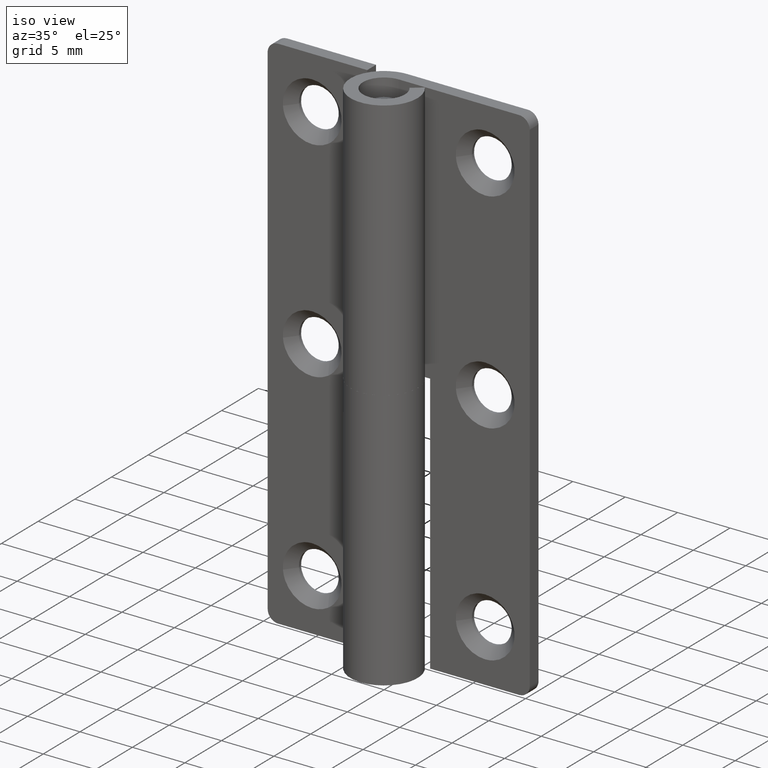
[diagram: clean part render]
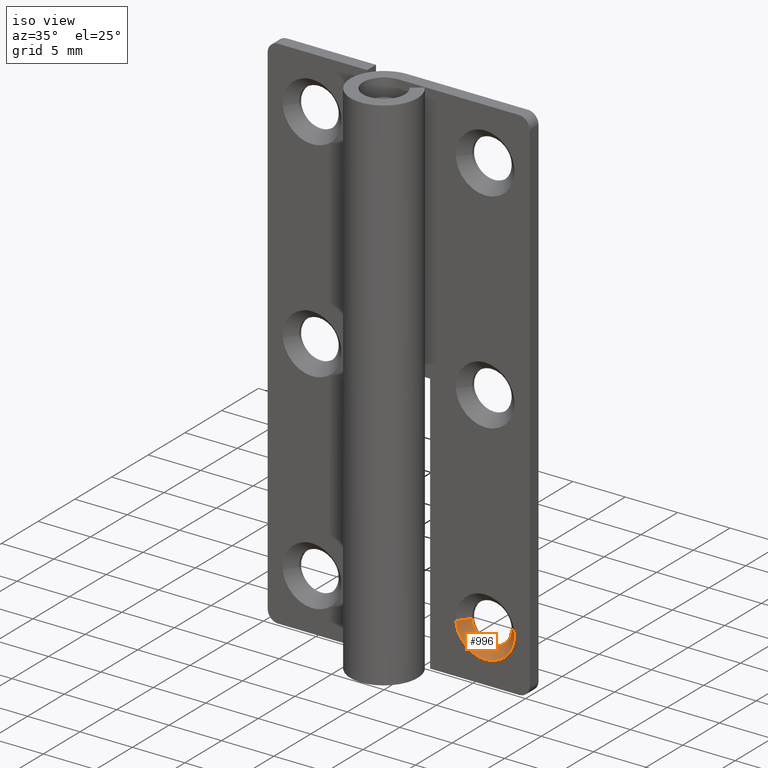
[diagram: same view with one face highlighted and labeled with its STEP entity id]
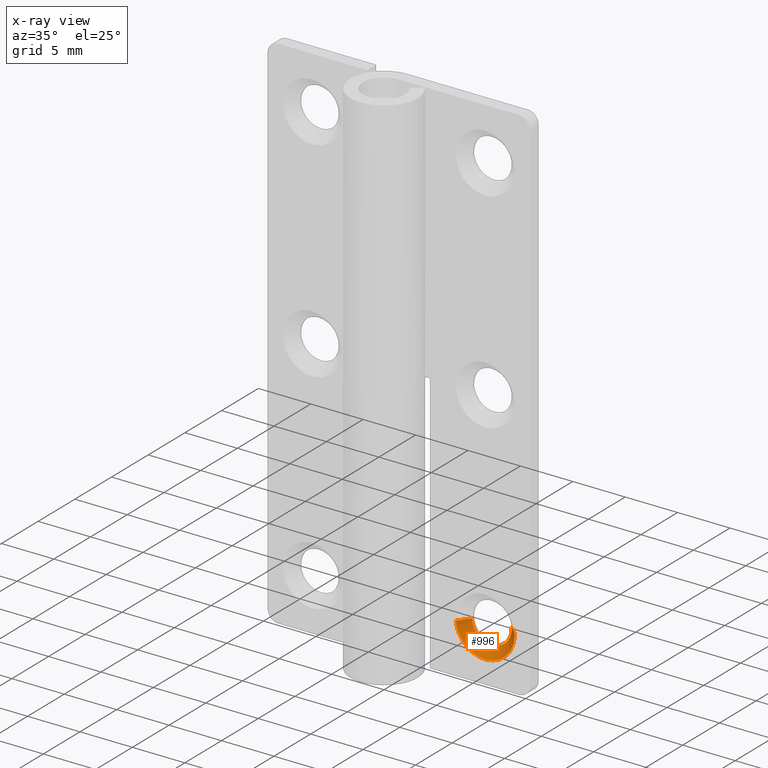
[diagram: x-ray of the same camera — body ghosted, the highlighted face saturated]
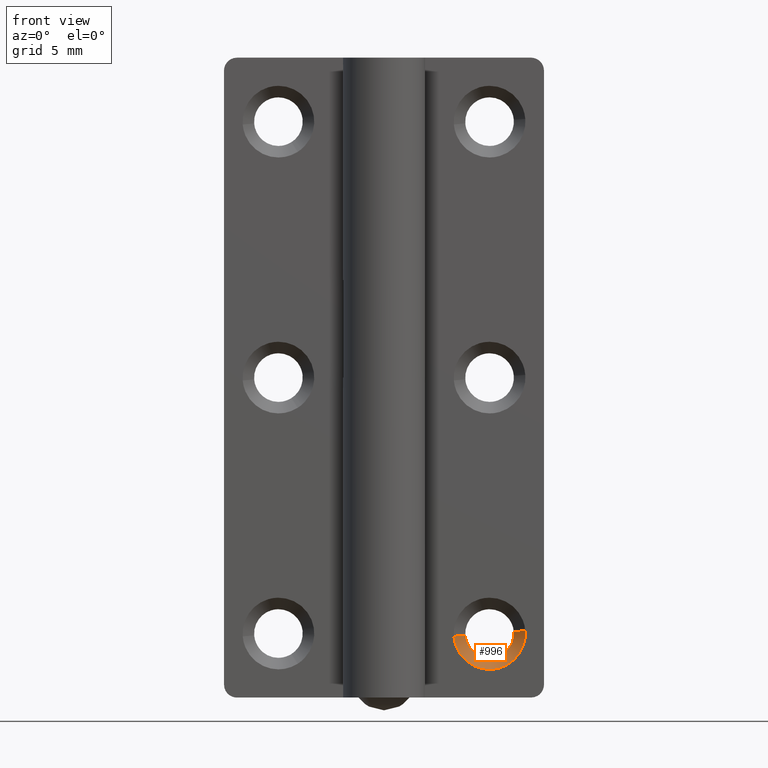
[diagram: same view with one face highlighted and labeled with its STEP entity id]
A machine part, iso view. The second image highlights one B-rep face of the part: STEP entity #996.
The next image is the same camera in x-ray: the body ghosted, the highlighted face saturated — about 0% of this face is hidden behind the body in this view.
A second angle (front view) of the same face is appended — the face is thin or edge-on in the first view.
In plain terms, the highlighted face is a freeform B-spline surface patch.
Its self-contained STEP definition (entity closure, byte-faithful):
#683=CARTESIAN_POINT('',(10.137591364546340,2.900000035762785,4.783207840341765));
#684=VERTEX_POINT('',#683);
#685=CARTESIAN_POINT('',(8.250000000000000,2.900000035762786,3.100000000000001));
#686=VERTEX_POINT('',#685);
#687=CARTESIAN_POINT('',(10.137591364546338,2.900000035762785,4.783207840341765));
#688=CARTESIAN_POINT('',(9.944272090643279,2.900000035762785,3.100000000000001));
#689=CARTESIAN_POINT('',(8.250000000000000,2.900000035762786,3.100000000000001));
#697=(BOUNDED_CURVE()B_SPLINE_CURVE(2,(#687,#688,#689),.UNSPECIFIED.,.F.,.U.)B_SPLINE_CURVE_WITH_KNOTS((3,3),(0.269767916659028,0.500000000000000),.UNSPECIFIED.)CURVE()GEOMETRIC_REPRESENTATION_ITEM()RATIONAL_B_SPLINE_CURVE((0.957343419302169,0.730266336144542,1.0))REPRESENTATION_ITEM(''));
#698=EDGE_CURVE('',#684,#686,#697,.T.);
#737=CARTESIAN_POINT('',(6.354122178725380,2.900000035761674,4.875737760687876));
#738=VERTEX_POINT('',#737);
#744=CARTESIAN_POINT('',(8.250000000000000,2.900000035762786,3.100000000000001));
#745=CARTESIAN_POINT('',(6.470482728270433,2.900000035762230,3.100001774364233));
#746=CARTESIAN_POINT('',(6.354122178725380,2.900000035761674,4.875737760687876));
#754=(BOUNDED_CURVE()B_SPLINE_CURVE(2,(#744,#745,#746),.UNSPECIFIED.,.F.,.U.)B_SPLINE_CURVE_WITH_KNOTS((3,3),(0.500000000000000,0.738580719742722),.UNSPECIFIED.)CURVE()GEOMETRIC_REPRESENTATION_ITEM()RATIONAL_B_SPLINE_CURVE((1.0,0.720485300190896,0.974465146454807))REPRESENTATION_ITEM(''));
#755=EDGE_CURVE('',#686,#738,#754,.T.);
#786=CARTESIAN_POINT('',(10.144142934093839,2.900000035760563,5.149072281899811));
#787=VERTEX_POINT('',#786);
#788=CARTESIAN_POINT('',(10.144142934093843,2.900000035760563,5.149072281899811));
#789=CARTESIAN_POINT('',(10.150000000000000,2.900000035762786,5.074651203331381));
#790=CARTESIAN_POINT('',(10.150000000000000,2.900000035762786,5.0));
#791=CARTESIAN_POINT('',(10.150000000000000,2.900000035762785,4.891248347949136));
#792=CARTESIAN_POINT('',(10.137591364546338,2.900000035762786,4.783207840341765));
#800=(BOUNDED_CURVE()B_SPLINE_CURVE(2,(#788,#789,#790,#791,#792),.UNSPECIFIED.,.F.,.U.)B_SPLINE_CURVE_WITH_KNOTS((3,2,3),(0.236331300629738,0.250000000000000,0.269767916659027),.UNSPECIFIED.)CURVE()GEOMETRIC_REPRESENTATION_ITEM()RATIONAL_B_SPLINE_CURVE((0.969723356165495,0.983986122577803,1.0,0.976840445042006,0.957343419302170))REPRESENTATION_ITEM(''));
#801=EDGE_CURVE('',#787,#684,#800,.T.);
#889=CARTESIAN_POINT('',(11.041368546347060,1.999999999974804,5.219685469165888));
#890=VERTEX_POINT('',#889);
#891=CARTESIAN_POINT('',(10.144142934093839,2.900000035760563,5.149072281899811));
#892=CARTESIAN_POINT('',(11.041368546347060,1.999999999974804,5.219685469165888));
#893=QUASI_UNIFORM_CURVE('',1,(#891,#892),.UNSPECIFIED.,.F.,.U.);
#894=EDGE_CURVE('',#787,#890,#893,.T.);
#911=CARTESIAN_POINT('',(5.458631453652947,1.999999999974803,4.780314530834112));
#912=VERTEX_POINT('',#911);
#928=CARTESIAN_POINT('',(6.354122178725380,2.900000035761674,4.875737760687876));
#929=CARTESIAN_POINT('',(5.458631453652947,1.999999999974803,4.780314530834112));
#930=QUASI_UNIFORM_CURVE('',1,(#928,#929),.UNSPECIFIED.,.F.,.U.);
#931=EDGE_CURVE('',#738,#912,#930,.T.);
#937=CARTESIAN_POINT('',(6.374311533131492,2.922500036656856,4.903215117036477));
#938=CARTESIAN_POINT('',(6.376288443160134,2.922500036656854,4.878096093467494));
#939=CARTESIAN_POINT('',(6.525594658418805,2.922500036656857,2.980980754007510));
#940=CARTESIAN_POINT('',(8.397306952205648,2.922500036656856,3.128287706213158));
#941=CARTESIAN_POINT('',(10.269019245992490,2.922500036656857,3.275594658418805));
#942=CARTESIAN_POINT('',(10.120668925814634,2.922500036656855,5.160564199275640));
#943=CARTESIAN_POINT('',(10.119631662113038,2.922500036656857,5.173743884233638));
#944=CARTESIAN_POINT('',(5.429661360174474,1.976937499083579,4.854471491404573));
#945=CARTESIAN_POINT('',(5.432633898439612,1.976937499083577,4.816701811621575));
#946=CARTESIAN_POINT('',(5.657134979241775,1.976937499083579,1.964145115456847));
#947=CARTESIAN_POINT('',(8.471494931892464,1.976937499083578,2.185640047349311));
#948=CARTESIAN_POINT('',(11.285854884543152,1.976937499083579,2.407134979241774));
#949=CARTESIAN_POINT('',(11.062791114829517,1.976937499083578,5.241428906446159));
#950=CARTESIAN_POINT('',(11.061231455563604,1.976937499083580,5.261246256397573));
#958=(BOUNDED_SURFACE()B_SPLINE_SURFACE(2,1,((#937,#944),(#938,#945),(#939,#946),(#940,#947),(#941,#948),(#942,#949),(#943,#950)),.UNSPECIFIED.,.F.,.F.,.U.)B_SPLINE_SURFACE_WITH_KNOTS((3,1,2,1,3),(2,2),(0.0,0.090284848917959,4.767687968882904,9.445091088847850,9.492081590959346),(0.0,1.0),.UNSPECIFIED.)GEOMETRIC_REPRESENTATION_ITEM()RATIONAL_B_SPLINE_SURFACE(((1.011307051939481,1.011307051939481),(1.005653525969741,1.005653525969741),(0.707106781186548,0.707106781186548),(1.0,1.0),(0.707106781186548,0.707106781186548),(1.002942487329850,1.002942487329850),(1.005884974659699,1.005884974659699)))REPRESENTATION_ITEM('')SURFACE());
#959=ORIENTED_EDGE('',*,*,#801,.T.);
#960=ORIENTED_EDGE('',*,*,#698,.T.);
#961=ORIENTED_EDGE('',*,*,#755,.T.);
#962=ORIENTED_EDGE('',*,*,#931,.T.);
#963=CARTESIAN_POINT('',(8.250000000000000,2.0,2.199999988079070));
#964=VERTEX_POINT('',#963);
#965=CARTESIAN_POINT('',(8.250000000000000,2.0,2.199999988079070));
#966=CARTESIAN_POINT('',(5.661706612692063,2.000000000000000,2.199999988079071));
#967=CARTESIAN_POINT('',(5.458631453652947,1.999999999974804,4.780314530834112));
#975=(BOUNDED_CURVE()B_SPLINE_CURVE(2,(#965,#966,#967),.UNSPECIFIED.,.F.,.U.)B_SPLINE_CURVE_WITH_KNOTS((3,3),(0.500000000000000,0.736331300609351),.UNSPECIFIED.)CURVE()GEOMETRIC_REPRESENTATION_ITEM()RATIONAL_B_SPLINE_CURVE((1.0,0.723120658632630,0.969723356122949))REPRESENTATION_ITEM(''));
#976=EDGE_CURVE('',#964,#912,#975,.T.);
#977=ORIENTED_EDGE('',*,*,#976,.F.);
#978=CARTESIAN_POINT('',(11.041368546347051,1.999999999974804,5.219685469165888));
#979=CARTESIAN_POINT('',(11.050000011920933,2.000000000000000,5.110012300281372));
#980=CARTESIAN_POINT('',(11.050000011920931,2.0,5.0));
#981=CARTESIAN_POINT('',(11.050000011920931,2.000000000000000,2.199999988079070));
#982=CARTESIAN_POINT('',(8.250000000000000,2.0,2.199999988079070));
#990=(BOUNDED_CURVE()B_SPLINE_CURVE(2,(#978,#979,#980,#981,#982),.UNSPECIFIED.,.F.,.U.)B_SPLINE_CURVE_WITH_KNOTS((3,2,3),(0.236331300609352,0.250000000000000,0.500000000000000),.UNSPECIFIED.)CURVE()GEOMETRIC_REPRESENTATION_ITEM()RATIONAL_B_SPLINE_CURVE((0.969723356122950,0.983986122553918,1.0,0.707106781186548,1.0))REPRESENTATION_ITEM(''));
#991=EDGE_CURVE('',#890,#964,#990,.T.);
#992=ORIENTED_EDGE('',*,*,#991,.F.);
#993=ORIENTED_EDGE('',*,*,#894,.F.);
#994=EDGE_LOOP('',(#959,#960,#961,#962,#977,#992,#993));
#995=FACE_OUTER_BOUND('',#994,.T.);
#996=ADVANCED_FACE('',(#995),#958,.F.);